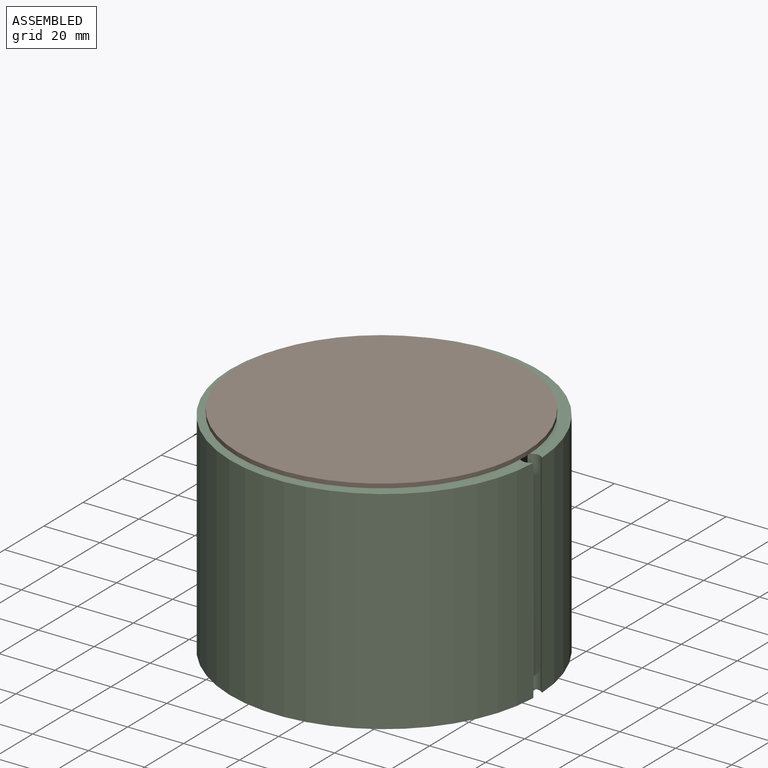
[diagram: assembled view]
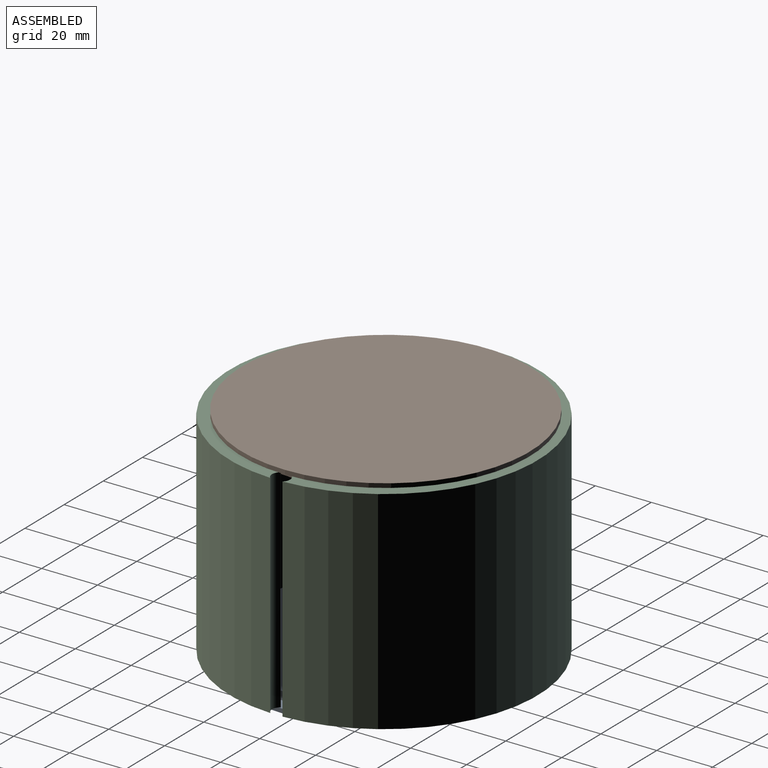
[diagram: assembled view, second angle]
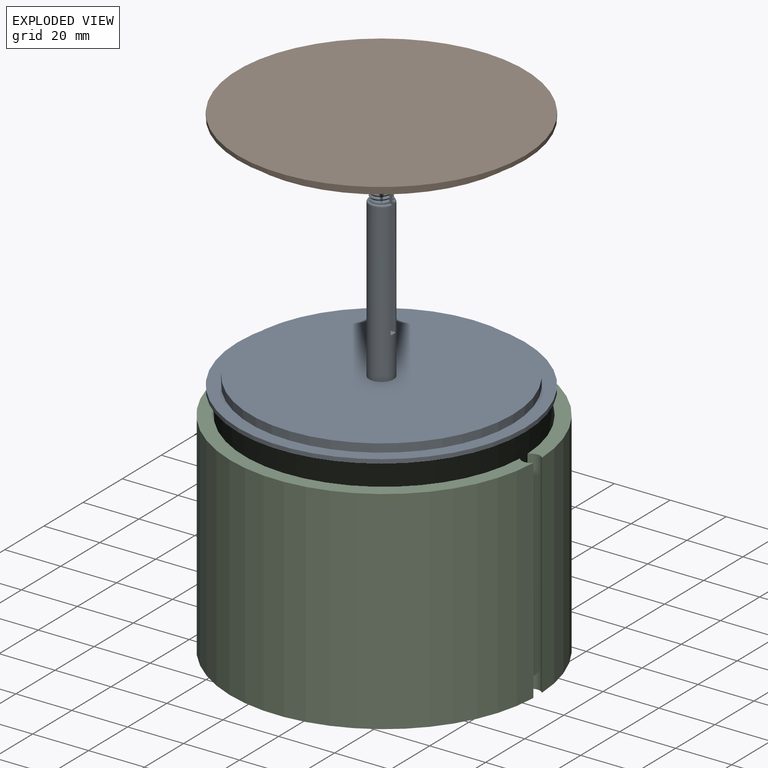
[diagram: exploded view]
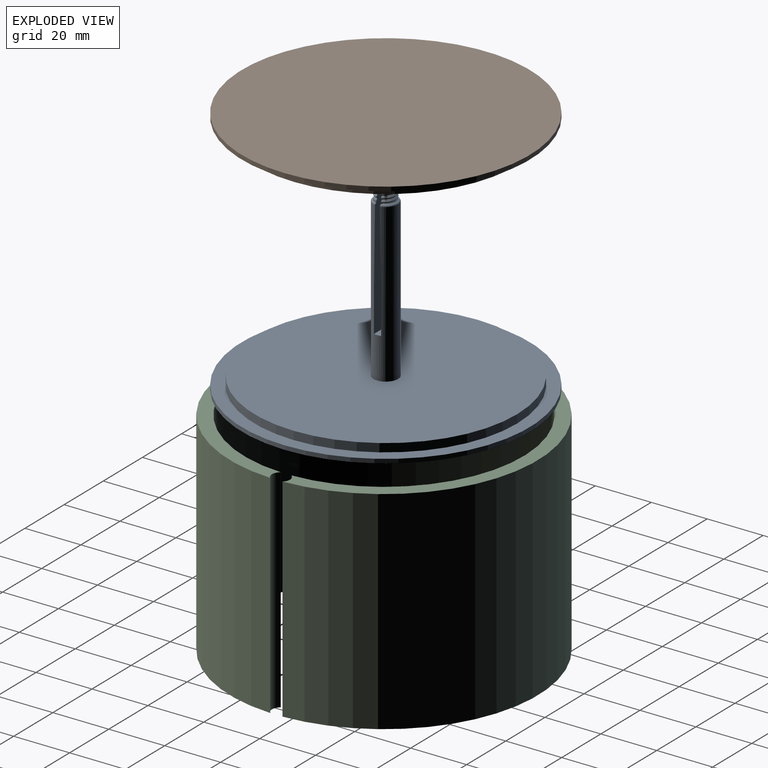
[diagram: exploded view, second angle]
ASSEMBLY  parts=3 mates=2
PART A: 89 faces, bbox 103.2x103.2x77.3 mm
  f0: cylinder r=4.38mm len=56.37mm, axis (0,0,-1), area 1356.9mm2, adj f77,f78,f83,f84,f85,f86,f87,f88
  f1: cylinder r=3.75mm len=7.31mm, axis (0,0,-1), area 3.4mm2, adj f51,f77,f87
  f2: cylinder r=3.75mm len=7.32mm, axis (0,0,-1), area 0.5mm2, adj f26,f52,f87
  f3: cylinder r=3.75mm len=7.33mm, axis (0,0,-1), area 0.5mm2, adj f27,f53,f87
  f4: cylinder r=3.75mm len=7.34mm, axis (0,0,-1), area 0.5mm2, adj f28,f54,f87
  f5: cylinder r=3.75mm len=7.34mm, axis (0,0,-1), area 0.5mm2, adj f29,f55,f87
  f6: cylinder r=3.75mm len=7.35mm, axis (0,0,-1), area 0.5mm2, adj f30,f56,f87
  f7: cylinder r=3.75mm len=7.36mm, axis (0,0,-1), area 0.5mm2, adj f31,f57,f87
  f8: cylinder r=3.75mm len=7.37mm, axis (0,0,-1), area 0.5mm2, adj f32,f58,f87
  f9: cylinder r=3.75mm len=7.38mm, axis (0,0,-1), area 0.5mm2, adj f33,f59,f87
  f10: cylinder r=3.75mm len=7.38mm, axis (0,0,-1), area 0.5mm2, adj f34,f60,f87
  f11: cylinder r=3.75mm len=7.39mm, axis (0,0,-1), area 0.5mm2, adj f35,f61,f87
  f12: cylinder r=3.75mm len=7.4mm, axis (0,0,-1), area 0.5mm2, adj f36,f62,f75,f87
  f13: cylinder r=3.75mm len=7.31mm, axis (0,0,-1), area 0.5mm2, adj f38,f64,f88
  f14: cylinder r=3.75mm len=7.32mm, axis (0,0,-1), area 0.5mm2, adj f39,f65,f88
  f15: cylinder r=3.75mm len=7.33mm, axis (0,0,-1), area 0.5mm2, adj f40,f66,f88
  f16: cylinder r=3.75mm len=7.34mm, axis (0,0,-1), area 0.5mm2, adj f41,f67,f88
  f17: cylinder r=3.75mm len=7.35mm, axis (0,0,-1), area 0.5mm2, adj f42,f68,f88
  f18: cylinder r=3.75mm len=7.36mm, axis (0,0,-1), area 0.5mm2, adj f43,f69,f88
  f19: cylinder r=3.75mm len=7.36mm, axis (0,0,-1), area 0.5mm2, adj f44,f70,f88
  f20: cylinder r=3.75mm len=7.37mm, axis (0,0,-1), area 0.5mm2, adj f45,f71,f88
  f21: cylinder r=3.75mm len=7.38mm, axis (0,0,-1), area 0.5mm2, adj f46,f72,f88
  f22: cylinder r=3.75mm len=7.39mm, axis (0,0,-1), area 0.5mm2, adj f47,f73,f88
  f23: cylinder r=3.75mm len=7.39mm, axis (0,0,-1), area 0.5mm2, adj f48,f74,f88
  f24: plane 6.11x2.51mm, normal (0,0,1), area 11.5mm2, adj f75,f87
  f25: plane 6.11x2.51mm, normal (0,0,1), area 11.5mm2, adj f76,f88
  f26: bspline ~7.5x4.33mm, area 7.3mm2, adj f2,f51,f87
  f27: bspline ~7.5x4.33mm, area 7.3mm2, adj f3,f52,f87
  f28: bspline ~7.5x4.33mm, area 7.4mm2, adj f4,f53,f87
  f29: bspline ~7.5x4.33mm, area 7.4mm2, adj f5,f54,f87
  f30: bspline ~7.5x4.33mm, area 7.4mm2, adj f6,f55,f87
  f31: bspline ~7.5x4.33mm, area 7.4mm2, adj f7,f56,f87
  f32: bspline ~7.5x4.33mm, area 7.5mm2, adj f8,f57,f87
  f33: bspline ~7.5x4.33mm, area 7.5mm2, adj f9,f58,f87
  f34: bspline ~7.5x4.33mm, area 7.5mm2, adj f10,f59,f87
  f35: bspline ~7.5x4.33mm, area 7.6mm2, adj f11,f60,f87
  f36: bspline ~7.5x4.33mm, area 7.6mm2, adj f12,f61,f87
  f37: bspline ~7.5x4.33mm, area 1.2mm2, adj f62,f75,f87
  f38: bspline ~7.5x4.33mm, area 7.3mm2, adj f13,f63,f88
  f39: bspline ~7.5x4.33mm, area 7.3mm2, adj f14,f64,f88
  f40: bspline ~7.5x4.33mm, area 7.3mm2, adj f15,f65,f88
  f41: bspline ~7.5x4.33mm, area 7.4mm2, adj f16,f66,f88
  f42: bspline ~7.5x4.33mm, area 7.4mm2, adj f17,f67,f88
  f43: bspline ~7.5x4.33mm, area 7.4mm2, adj f18,f68,f88
  f44: bspline ~7.5x4.33mm, area 7.5mm2, adj f19,f69,f88
  f45: bspline ~7.5x4.33mm, area 7.5mm2, adj f20,f70,f88
  f46: bspline ~7.5x4.33mm, area 7.5mm2, adj f21,f71,f88
  f47: bspline ~7.5x4.33mm, area 7.6mm2, adj f22,f72,f88
  f48: bspline ~7.5x4.33mm, area 7.6mm2, adj f23,f73,f88
  f49: bspline ~7.5x4.33mm, area 5.5mm2, adj f74,f76,f88
  f50: cylinder r=3.75mm len=7.31mm, axis (0,0,1), area 2.9mm2, adj f63,f78,f88
  f51: bspline ~7.5x4.33mm, area 7.3mm2, adj f1,f26,f87
  f52: bspline ~7.5x4.33mm, area 7.3mm2, adj f2,f27,f87
  f53: bspline ~7.5x4.33mm, area 7.3mm2, adj f3,f28,f87
  f54: bspline ~7.5x4.33mm, area 7.4mm2, adj f4,f29,f87
  f55: bspline ~7.5x4.33mm, area 7.4mm2, adj f5,f30,f87
  f56: bspline ~7.5x4.33mm, area 7.4mm2, adj f6,f31,f87
  f57: bspline ~7.5x4.33mm, area 7.5mm2, adj f7,f32,f87
  f58: bspline ~7.5x4.33mm, area 7.5mm2, adj f8,f33,f87
  f59: bspline ~7.5x4.33mm, area 7.5mm2, adj f9,f34,f87
  f60: bspline ~7.5x4.33mm, area 7.6mm2, adj f10,f35,f87
  f61: bspline ~7.5x4.33mm, area 7.6mm2, adj f11,f36,f87
  f62: bspline ~7.5x4.33mm, area 7mm2, adj f12,f37,f75,f87
  f63: bspline ~7.5x4.33mm, area 7.3mm2, adj f38,f50,f88
  f64: bspline ~7.5x4.33mm, area 7.3mm2, adj f13,f39,f88
  f65: bspline ~7.5x4.33mm, area 7.3mm2, adj f14,f40,f88
  f66: bspline ~7.5x4.33mm, area 7.4mm2, adj f15,f41,f88
  f67: bspline ~7.5x4.33mm, area 7.4mm2, adj f16,f42,f88
  f68: bspline ~7.5x4.33mm, area 7.4mm2, adj f17,f43,f88
  f69: bspline ~7.5x4.33mm, area 7.4mm2, adj f18,f44,f88
  f70: bspline ~7.5x4.33mm, area 7.5mm2, adj f19,f45,f88
  f71: bspline ~7.5x4.33mm, area 7.5mm2, adj f20,f46,f88
  f72: bspline ~7.5x4.33mm, area 7.5mm2, adj f21,f47,f88
  f73: bspline ~7.5x4.33mm, area 7.6mm2, adj f22,f48,f88
  f74: bspline ~7.5x4.33mm, area 7.6mm2, adj f23,f49,f88
  f75: cone r=3.12mm half-angle=45deg, axis (0,0,-1), area 3.4mm2, adj f12,f24,f37,f62,f87
  f76: cone r=3.12mm half-angle=45deg, axis (0,0,-1), area 6.6mm2, adj f25,f49,f88
  f77: torus R=3.74mm, axis (0,0,1), area 11.2mm2, adj f0,f1,f87
  f78: torus R=3.74mm, axis (0,0,1), area 11.2mm2, adj f0,f50,f88
  f79: cylinder r=51.5mm len=103mm, axis (0,0,1), area 485.4mm2, adj f80,f81
  f80: plane 103x103mm, normal (0,0,-1), area 8332.3mm2, adj f79
  f81: plane 103x103mm, normal (0,0,1), area 1392.5mm2, adj f79,f82
  f82: cylinder r=47mm len=94mm, axis (0,0,-1), area 885.9mm2, adj f81,f83
  f83: plane 94x94mm, normal (0,0,1), area 6879.6mm2, adj f0,f82
  f84: plane 16.54x8.38mm, normal (0,1,0), area 138.5mm2, adj f0,f85,f87
  f85: plane 8.75x2.53mm, normal (0,0,1), area 21.8mm2, adj f0,f84,f86
  f86: plane 16.58x8.38mm, normal (0,-1,0), area 138.9mm2, adj f0,f85,f88
  f87: plane 40.95x8.73mm, normal (0,1,-0.02), area 321.9mm2, adj f0,f1,f2,f3,f4,f5,f6,f7
  f88: plane 40.9x8.73mm, normal (0,-1,-0.02), area 321.1mm2, adj f0,f13,f14,f15,f16,f17,f18,f19
PART B: 33 faces, bbox 103.3x103.3x7.4 mm
  f0: plane 93x93mm, normal (0,0,1), area 6726.6mm2, adj f11,f12,f13,f14,f15,f16,f27
  f1: cylinder r=3.88mm len=7.75mm, axis (0,0,-1), area 15.4mm2, adj f3,f7,f8,f9,f17,f18,f19,f21
  f2: plane 0.27x0.1mm, normal (0,0,1), area 0mm2, adj f8,f9,f24
  f3: plane 0.09x0.04mm, normal (0,0,1), area 0mm2, adj f1,f24,f25
  f4: plane 0.85x0.83mm, normal (0,0,1), area 0.2mm2, adj f9,f22,f24
  f5: plane 0.48x0.2mm, normal (0,0,1), area 0mm2, adj f9,f20,f22
  f6: plane 0.06x0.02mm, normal (0,0,1), area 0mm2, adj f10,f20,f21
  f7: plane 0.15x0.07mm, normal (0,0,1), area 0mm2, adj f1,f23,f25
  f8: plane 0.58x0.4mm, normal (0,1,0), area 0.1mm2, adj f1,f2,f19,f24
  f9: bspline ~8.95x7.75mm, area 61mm2, adj f1,f2,f4,f5,f10,f18,f19,f20
  f10: cylinder r=3.88mm len=1.15mm, axis (0,0,-1), area 0mm2, adj f6,f9,f20,f21
  f11: plane 4.77x4mm, normal (-0.94,0.33,0), area 20.2mm2, adj f0,f12,f16,f21
  f12: plane 4x3.84mm, normal (-0.76,-0.65,0), area 20.2mm2, adj f0,f11,f13,f20
  f13: plane 4.97x4mm, normal (0.18,-0.98,0), area 20.2mm2, adj f0,f12,f14,f22
  f14: plane 4.77x4mm, normal (0.94,-0.33,0), area 20.2mm2, adj f0,f13,f15,f24
  f15: plane 4x3.84mm, normal (0.76,0.65,0), area 20.2mm2, adj f0,f14,f16,f25
  f16: plane 4.97x4mm, normal (-0.18,0.98,0), area 20.2mm2, adj f0,f11,f15,f23
  f17: plane 0.11x0.09mm, normal (0,0,1), area 0mm2, adj f1,f21,f23
  f18: plane 0.58x0.4mm, normal (0,-1,0), area 0.1mm2, adj f1,f9,f26
  f19: bspline ~8.95x7.75mm, area 61mm2, adj f1,f8,f9,f26
  f20: cylinder r=1mm len=4.49mm, axis (-0.65,0.76,0), area 6.3mm2, adj f5,f6,f9,f10,f12,f21,f22
  f21: cylinder r=1mm len=5.1mm, axis (0.33,0.94,0), area 6mm2, adj f1,f6,f9,f10,f11,f17,f20,f23
  f22: cylinder r=1mm len=5.15mm, axis (-0.98,-0.18,0), area 6.4mm2, adj f4,f5,f9,f13,f20,f24
  f23: cylinder r=1mm len=5.15mm, axis (0.98,0.18,0), area 6mm2, adj f1,f7,f16,f17,f21,f25
  f24: cylinder r=1mm len=5.1mm, axis (-0.33,-0.94,0), area 7mm2, adj f1,f2,f3,f4,f8,f9,f14,f22
  f25: cylinder r=1mm len=4.49mm, axis (0.65,-0.76,0), area 6mm2, adj f1,f3,f7,f15,f23,f24
  f26: plane 8.08x7.9mm, normal (0,0,1), area 45mm2, adj f1,f18,f19
  f27: cylinder r=46.5mm len=93mm, axis (0,0,-1), area 876.5mm2, adj f0,f29
  f28: cylinder r=47mm len=94mm, axis (0,0,-1), area 885.9mm2, adj f29,f32
  f29: plane 94x94mm, normal (0,0,1), area 146.9mm2, adj f27,f28
  f30: plane 103x103mm, normal (0,0,-1), area 8332.3mm2, adj f31
  f31: cylinder r=51.5mm len=103mm, axis (0,0,1), area 485.4mm2, adj f30,f32
  f32: plane 103x103mm, normal (0,0,1), area 1392.5mm2, adj f28,f31
PART C: 6 faces, bbox 76x110x110 mm
  f0: cylinder r=55mm len=110mm, axis (-1,0,0), area 25929.3mm2, adj f1,f2,f4,f5
  f1: plane 110x109.96mm, normal (1,0,0), area 1620.4mm2, adj f0,f3,f4,f5
  f2: plane 110x109.96mm, normal (-1,0,0), area 1620.4mm2, adj f0,f3,f4,f5
  f3: cylinder r=50mm len=100mm, axis (-1,0,0), area 23579.9mm2, adj f1,f2,f4,f5
  f4: cylinder r=3.25mm len=76mm, axis (-1,0,0), area 433.6mm2, adj f0,f1,f2,f3
  f5: cylinder r=3.25mm len=76mm, axis (-1,0,0), area 433.6mm2, adj f0,f1,f2,f3
PLACE A t=(-44.97,-0.39,6.45)mm
PLACE B rot(axis=(1,0,0),180deg) t=(-44.97,23.84,82.45)mm
PLACE C rot(axis=(0.71,0,0.71),180deg) t=(-44.04,-0.39,6.45)mm
MATE fastened B.f27 <-> C.f1  axis (0,0,-1) through (-44.97,-0.39,82.45)mm
MATE fastened C.f2 <-> A.f79  axis (0,0,-1) through (-44.97,-0.39,6.45)mm
